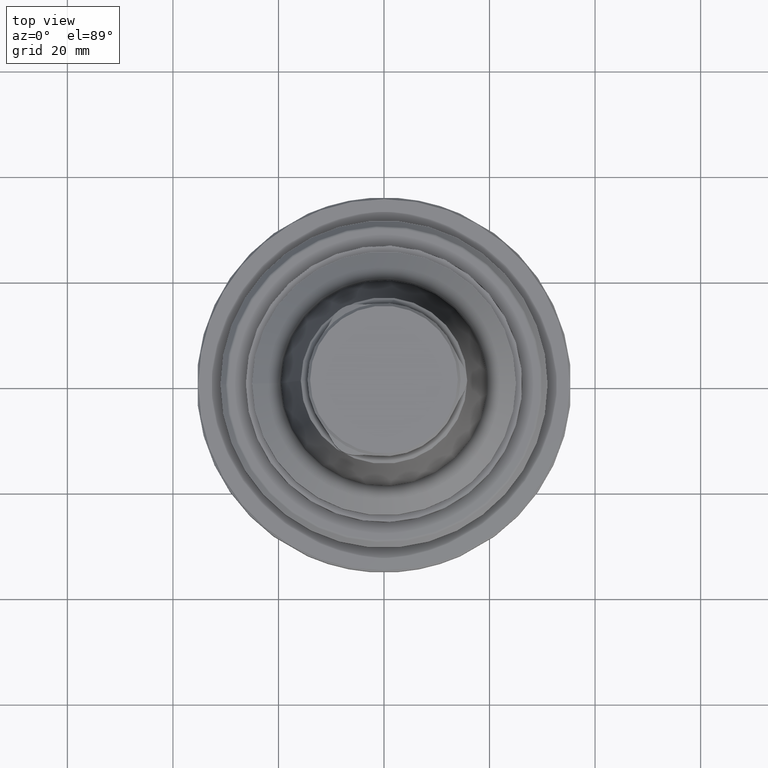
[diagram: clean part render]
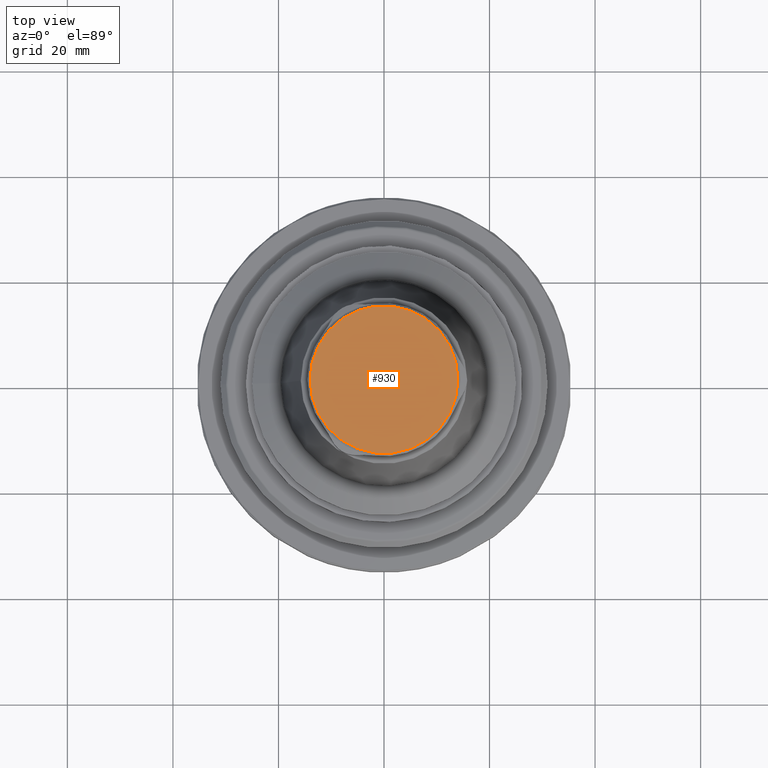
[diagram: same view with one face highlighted and labeled with its STEP entity id]
A machine part, top view. The second image highlights one B-rep face of the part: STEP entity #930.
In plain terms, the highlighted planar face has unit normal (0, 0, 1).
Its self-contained STEP definition (entity closure, byte-faithful):
#297=ORIENTED_EDGE('',*,*,#484,.F.);
#484=EDGE_CURVE('',#593,#593,#666,.T.);
#593=VERTEX_POINT('',#1607);
#666=CIRCLE('',#1043,14.);
#740=EDGE_LOOP('',(#297));
#836=FACE_BOUND('',#740,.T.);
#893=PLANE('',#1042);
#930=ADVANCED_FACE('',(#836),#893,.T.);
#1042=AXIS2_PLACEMENT_3D('',#1605,#1247,#1248);
#1043=AXIS2_PLACEMENT_3D('',#1606,#1249,#1250);
#1247=DIRECTION('',(4.38328612912168E-16,8.51929322185263E-24,1.));
#1248=DIRECTION('',(1.,-9.77164313006873E-16,-4.38328610599545E-16));
#1249=DIRECTION('',(-4.38328612912168E-16,-8.51929322185263E-24,-1.));
#1250=DIRECTION('',(-1.,9.77164313006873E-16,4.38328610599545E-16));
#1605=CARTESIAN_POINT('',(-14.0000000000001,-8.44842343176727E-14,55.));
#1606=CARTESIAN_POINT('',(-6.36553171097064E-14,-9.81645346997689E-14,55.));
#1607=CARTESIAN_POINT('',(-14.0000000000001,-8.44842343176727E-14,55.));